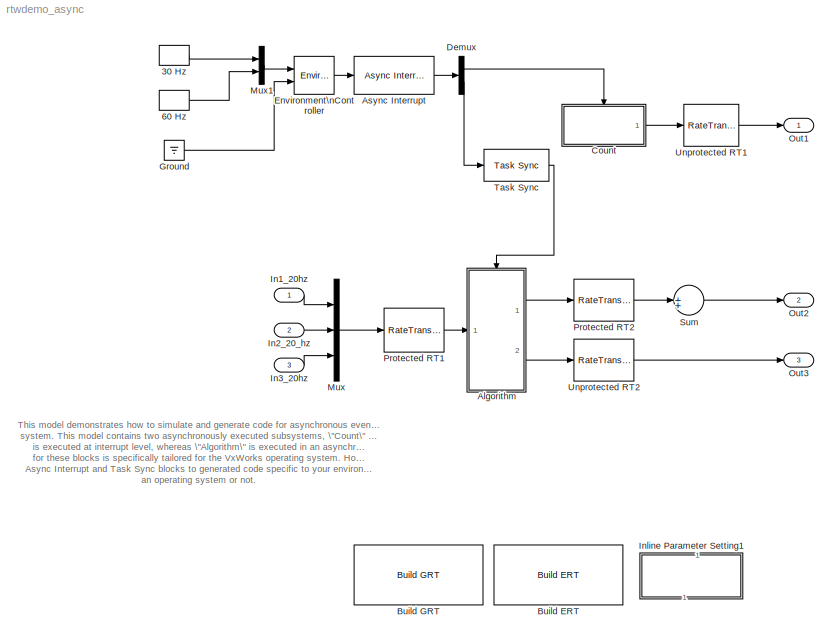
MODEL rtwdemo_async
KIND model
CONFIG PreLoadFcn = width = 160;
BLOCK [DiscretePulseGenerator] 30 Hz
  Ports = [0, 1]
  SampleTime = 1/30
  VectorParams1D = off
BLOCK [DiscretePulseGenerator] 60 Hz
  Period = 4
  Ports = [0, 1]
  PulseWidth = 2
  SampleTime = 1/60
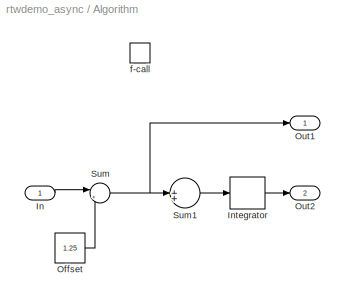
BLOCK [SubSystem] Algorithm
  MinAlgLoopOccurrences = off
  Ports = [1, 2, 0, 1]
  PropExecContextAcrossSSBoundary = on
  RTWFcnName = Algorithm
  RTWFcnNameOpts = User specified
  RTWFileName = Algorithm
  RTWFileNameOpts = User specified
  RTWSystemCode = Auto
  TreatAsAtomicUnit = on
BLOCK [Inport] Algorithm/In
  IconDisplay = Port number
  LatchInput = off
  Port = 1
BLOCK [DiscreteIntegrator] Algorithm/Integrator
  ExternalReset = none
  ICPrevOutput = DiscIntNeverNeededParam
  ICPrevScaledInput = DiscIntNeverNeededParam
  InitialConditionSource = internal
  IntegratorMethod = Integration: Forward Euler
  Ports = [1, 1]
  SampleTime = -1
  SaturateOnIntegerOverflow = on
BLOCK [Constant] Algorithm/Offset
  Value = 1.25
BLOCK [Outport] Algorithm/Out1
  BusOutputAsStruct = off
  IconDisplay = Port number
  InitialOutput = 0
BLOCK [Outport] Algorithm/Out2
  BusOutputAsStruct = off
  IconDisplay = Port number
  InitialOutput = 0
  Port = 2
BLOCK [Sum] Algorithm/Sum
  IconShape = round
  InputSameDT = off
  Inputs = |++
  OutDataTypeMode = Inherit via internal rule
  Ports = [2, 1]
  SaturateOnIntegerOverflow = off
BLOCK [Sum] Algorithm/Sum1
  Inputs = 1
  Ports = [1, 1]
BLOCK [TriggerPort] Algorithm/f-call
  Ports = []
  TriggerType = function-call
BLOCK [Reference] Async Interrupt  REF=vxlib1/Async Interrupt  (lib defined in mdl_145c668f6d9e)
  Ports = [1, 1]
  SourceBlock = vxlib1/Async Interrupt
  SourceType = VxWorks Interrrupt Block
  irqnumbers = [1 2]
  irqoffsets = [192 193]
  irqpreempts = [0 1]
  irqpriorities = [10 11]
  showinput = on
  tickres = 1/60
BLOCK [Reference] Build ERT  REF=rtwdemowidgets/Build ERT
  Ports = []
  ShowPortLabels = on
  SourceBlock = rtwdemowidgets/Build ERT
  attrib_overrides = {}
BLOCK [Reference] Build GRT  REF=rtwdemowidgets/Build GRT
  Ports = []
  ShowPortLabels = on
  SourceBlock = rtwdemowidgets/Build GRT
  attrib_overrides = {}
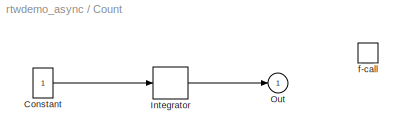
BLOCK [SubSystem] Count
  MinAlgLoopOccurrences = off
  Ports = [0, 1, 0, 1]
  PropExecContextAcrossSSBoundary = on
  RTWFcnName = Count
  RTWFcnNameOpts = User specified
  RTWFileName = Count
  RTWFileNameOpts = User specified
  RTWSystemCode = Auto
  TreatAsAtomicUnit = on
BLOCK [Constant] Count/Constant
BLOCK [DiscreteIntegrator] Count/Integrator
  ExternalReset = none
  ICPrevOutput = DiscIntNeverNeededParam
  ICPrevScaledInput = DiscIntNeverNeededParam
  InitialConditionSource = internal
  IntegratorMethod = Integration: Forward Euler
  Ports = [1, 1]
  SampleTime = -1
  SaturateOnIntegerOverflow = on
BLOCK [Outport] Count/Out
  BusOutputAsStruct = off
  IconDisplay = Port number
  InitialOutput = 0
BLOCK [TriggerPort] Count/f-call
  Ports = []
  StatesWhenEnabling = held
  TriggerType = function-call
BLOCK [Demux] Demux
  DisplayOption = bar
  Outputs = 2
  Ports = [1, 2]
BLOCK [Reference] Environment\nController  REF=simulink/Signal\nRouting/Environment\nController
  Ports = [2, 1]
  ShowPortLabels = on
  SourceBlock = simulink/Signal\nRouting/Environment\nController
  SourceType = Environment Controller
BLOCK [Ground] Ground
BLOCK [Inport] In1_20hz
  IconDisplay = Port number
  LatchInput = off
  Port = 1
  PortDimensions = 20
  SampleTime = 1/20
BLOCK [Inport] In2_20_hz
  IconDisplay = Port number
  LatchInput = off
  Port = 2
  PortDimensions = 20
  SampleTime = 1/20
BLOCK [Inport] In3_20hz
  IconDisplay = Port number
  LatchInput = off
  Port = 3
  PortDimensions = 20
  SampleTime = 1/20
BLOCK [SubSystem] Inline Parameter Setting1
  MaskDisplay = disp(sprintf('Display Sample\\nTime Colors\\n(double-click)'))
  MaskIconFrame = on
  MaskIconOpaque = on
  MaskIconRotate = none
  MaskIconUnits = autoscale
  MinAlgLoopOccurrences = off
  OpenFcn = m=get_param(bdroot,'name'); eval([m,'([],[],[],''compile'');']); eval([m,'([],[],[],''term'');']);
  Ports = []
  PropExecContextAcrossSSBoundary = on
  RTWSystemCode = Auto
  TreatAsAtomicUnit = off
BLOCK [Mux] Mux
  DisplayOption = bar
  Inputs = 3
  Ports = [3, 1]
BLOCK [Mux] Mux1
  DisplayOption = bar
  Inputs = 2
  Ports = [2, 1]
BLOCK [Outport] Out1
  BusOutputAsStruct = off
  IconDisplay = Port number
BLOCK [Outport] Out2
  BusOutputAsStruct = off
  IconDisplay = Port number
  Port = 2
BLOCK [Outport] Out3
  BusOutputAsStruct = off
  IconDisplay = Port number
  Port = 3
BLOCK [RateTransition] Protected RT1
  Deterministic = off
  OutPortSampleTime = 1/20
BLOCK [RateTransition] Protected RT2
  Deterministic = off
  OutPortSampleTime = 1/20
BLOCK [Sum] Sum
  Inputs = 1
  Ports = [1, 1]
BLOCK [Reference] Task Sync  REF=vxlib1/Task Sync  (lib defined in mdl_145c668f6d9e)
  Ports = [1, 1]
  ShowPortLabels = on
  SourceBlock = vxlib1/Task Sync
  SourceType = VxWorks Task Block
  parentmanaget = on
  taskname = Task0
  taskpriority = 50
  taskstacksize = 8192
  tickres = 1/60
BLOCK [RateTransition] Unprotected RT1
  Integrity = off
  OutPortSampleTime = 1/20
BLOCK [RateTransition] Unprotected RT2
  Integrity = off
  OutPortSampleTime = 1/20
ANNOTATION (root): This model demonstrates how to simulate and generate code for asynchronous events on a real-time multitasking\nsystem. This model contains two asynchronously executed subsystems, \"Count\" and \"Algorithm\". \"Count\"\nis executed at interrupt level, whereas \"Algorithm\" is executed in an asynchronous task. The code generated\nfor these blocks is specifically tailored for the VxWorks operating sy...<+168ch>
LINE 30 Hz:1 -> Mux1:1
LINE 60 Hz:1 -> Mux1:2
LINE Algorithm/In:1 -> Algorithm/Sum:1
LINE Algorithm/Integrator:1 -> Algorithm/Out2:1
LINE Algorithm/Offset:1 -> Algorithm/Sum:2
LINE Algorithm/Sum1:1 -> Algorithm/Integrator:1
NET Algorithm/Sum:1 -> Algorithm/Out1:1, Algorithm/Sum1:1
LINE Algorithm:1 -> Protected RT2:1
LINE Algorithm:2 -> Unprotected RT2:1
LINE Async Interrupt:1 -> Demux:1
LINE Count/Constant:1 -> Count/Integrator:1
LINE Count/Integrator:1 -> Count/Out:1
LINE Count:1 -> Unprotected RT1:1
LINE Demux:1 -> Count:trigger
LINE Demux:2 -> Task Sync:1
LINE Environment\nController:1 -> Async Interrupt:1
LINE Ground:1 -> Environment\nController:2
LINE In1_20hz:1 -> Mux:1
LINE In2_20_hz:1 -> Mux:2
LINE In3_20hz:1 -> Mux:3
LINE Mux1:1 -> Environment\nController:1
LINE Mux:1 -> Protected RT1:1
LINE Protected RT1:1 -> Algorithm:1
LINE Protected RT2:1 -> Sum:1
LINE Sum:1 -> Out2:1
LINE Task Sync:1 -> Algorithm:trigger
LINE Unprotected RT1:1 -> Out1:1
LINE Unprotected RT2:1 -> Out3:1
note: NET lines group one-source signal fan-out (src -> all destinations, sorted); 1:1 wires keep LINE
